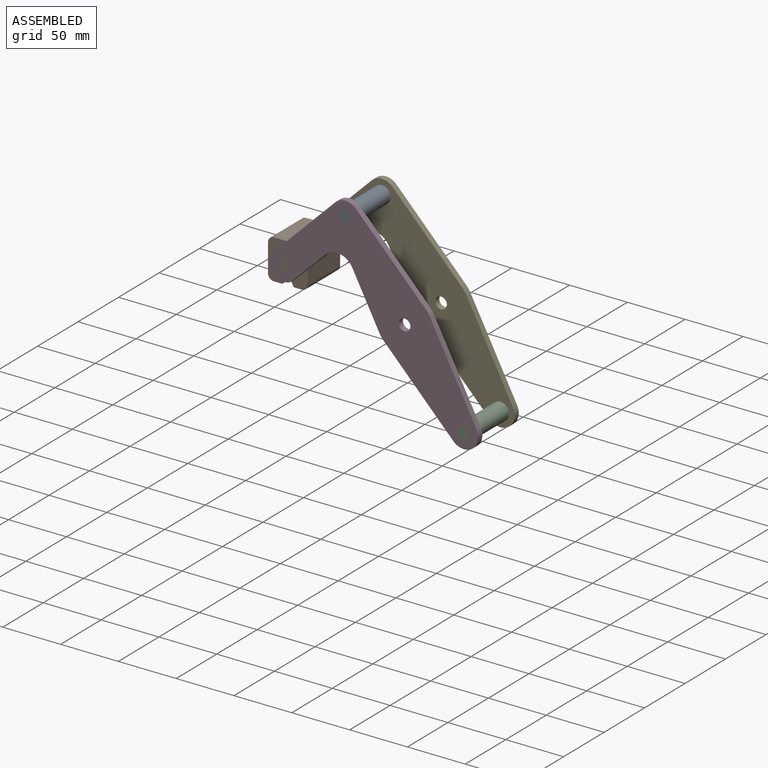
[diagram: assembled view]
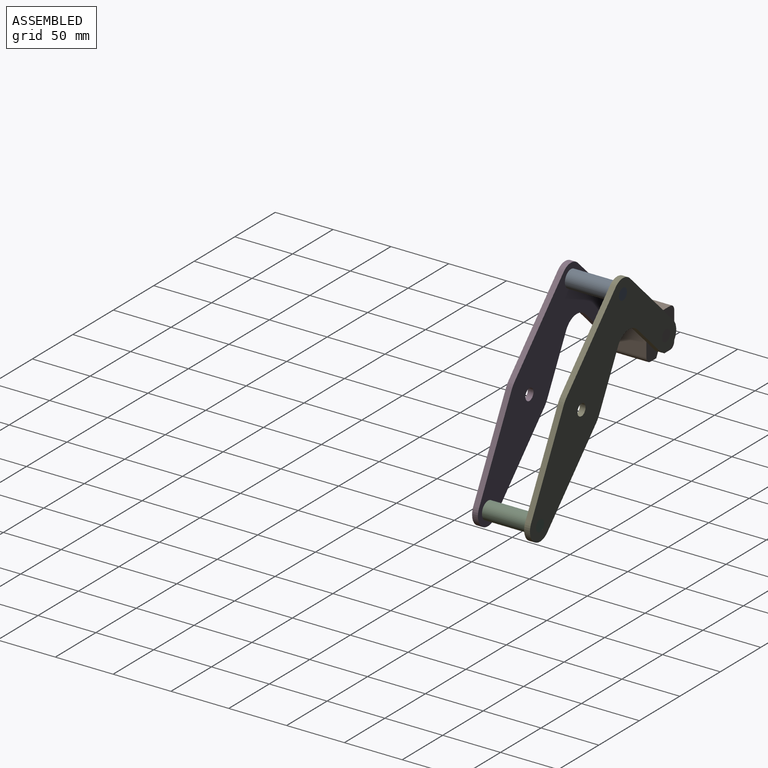
[diagram: assembled view, second angle]
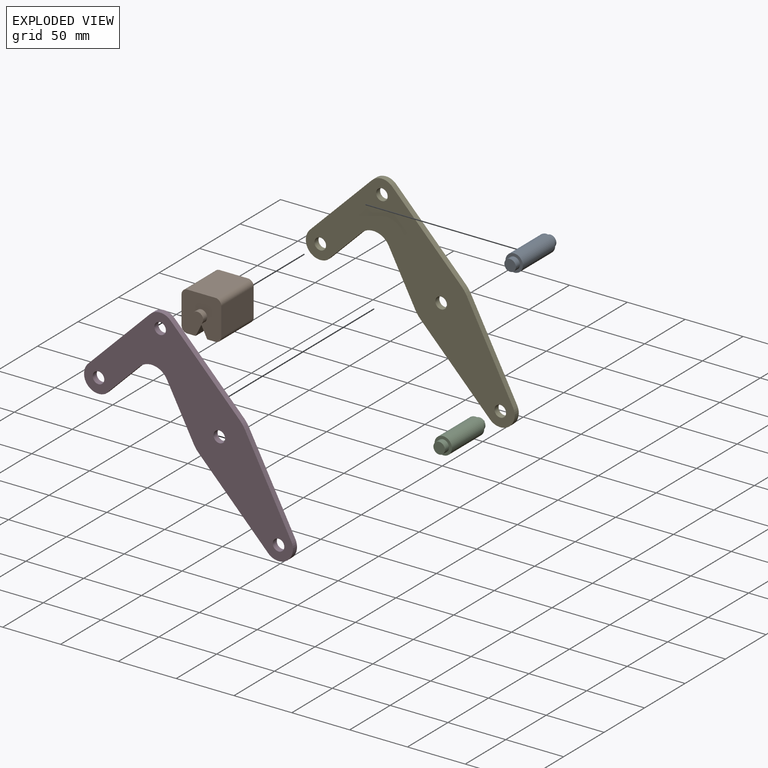
[diagram: exploded view]
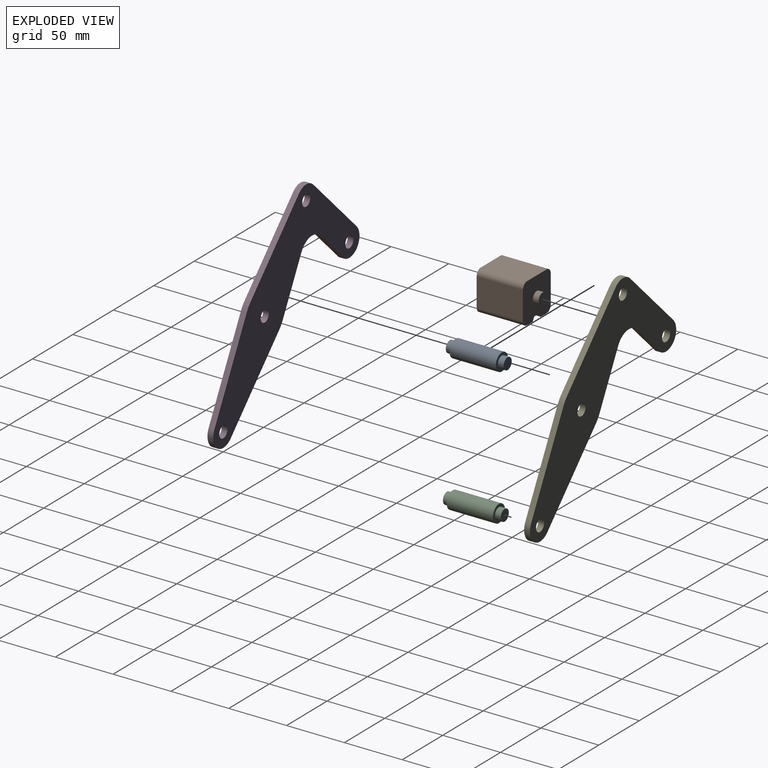
[diagram: exploded view, second angle]
ASSEMBLY  parts=5 mates=3
PART A: 7 faces, bbox 15x50x15 mm
  f0: cylinder r=7.5mm len=40mm, axis (0,1,0), area 1885mm2, adj f2,f5
  f1: cylinder r=5mm len=10mm, axis (0,-1,0), area 157.1mm2, adj f2,f3
  f2: plane 15x15mm, normal (0,1,0), area 98.2mm2, adj f0,f1
  f3: plane 10x10mm, normal (0,1,0), area 78.5mm2, adj f1
  f4: cylinder r=5mm len=10mm, axis (0,1,0), area 157.1mm2, adj f5,f6
  f5: plane 15x15mm, normal (0,-1,0), area 98.2mm2, adj f0,f4
  f6: plane 10x10mm, normal (0,-1,0), area 78.5mm2, adj f4
PART B: 17 faces, bbox 34.4x50x34.4 mm
  f0: plane 40x24.35mm, normal (0,0,1), area 974mm2, adj f5,f10,f13,f14
  f1: plane 40x24.35mm, normal (1,0,0), area 974mm2, adj f5,f12,f13,f14
  f2: plane 40x7.18mm, normal (0,0,-1), area 287mm2, adj f3,f5,f12,f14
  f3: plane 40x10mm, normal (-0.89,0,-0.45), area 447.2mm2, adj f2,f5,f6,f14
  f4: plane 40x24.35mm, normal (-1,0,0), area 974mm2, adj f5,f10,f11,f14
  f5: plane 34.35x34.35mm, normal (0,1,0), area 1029.9mm2, adj f0,f1,f2,f3,f4,f6,f7,f8
  f6: plane 40x10mm, normal (0.89,0,-0.45), area 447.2mm2, adj f3,f5,f7,f14
  f7: plane 40x7.18mm, normal (0,0,-1), area 287mm2, adj f5,f6,f11,f14
  f8: cylinder r=5mm len=10mm, axis (0,-1,0), area 157.1mm2, adj f5,f9
  f9: plane 10x10mm, normal (0,1,0), area 78.5mm2, adj f8
  f10: cylinder r=5mm len=40mm, axis (0,1,0), area 314.2mm2, adj f0,f4,f5,f14
  f11: cylinder r=5mm len=40mm, axis (0,-1,0), area 314.2mm2, adj f4,f5,f7,f14
  f12: cylinder r=5mm len=40mm, axis (0,1,0), area 314.2mm2, adj f1,f2,f5,f14
  f13: cylinder r=5mm len=40mm, axis (0,-1,0), area 314.2mm2, adj f0,f1,f5,f14
  f14: plane 34.35x34.35mm, normal (0,-1,0), area 1029.9mm2, adj f0,f1,f2,f3,f4,f6,f7,f10
  f15: cylinder r=5mm len=10mm, axis (0,1,0), area 157.1mm2, adj f14,f16
  f16: plane 10x10mm, normal (0,-1,0), area 78.5mm2, adj f15
PART C: same geometry as A
PART D: 18 faces, bbox 180.7x5x166.9 mm
  f0: plane 43.7x22.86mm, normal (-0.89,0,-0.46), area 246.6mm2, adj f1,f14,f16,f17
  f1: cylinder r=25mm len=6.29mm, axis (0,1,0), area 38.6mm2, adj f0,f2,f16,f17
  f2: plane 62.26x60.2mm, normal (-0.72,0,-0.7), area 433mm2, adj f1,f3,f16,f17
  f3: cylinder r=12.5mm len=21.49mm, axis (0,1,0), area 178.4mm2, adj f2,f4,f16,f17
  f4: plane 76.74x40.13mm, normal (0.89,0,0.46), area 433mm2, adj f3,f5,f16,f17
  f5: cylinder r=25mm len=5.79mm, axis (0,1,0), area 35.8mm2, adj f4,f6,f16,f17
  f6: plane 62.26x60.2mm, normal (0.72,0,0.7), area 433mm2, adj f5,f7,f16,f17
  f7: cylinder r=12.5mm len=17.78mm, axis (0,1,0), area 98.9mm2, adj f6,f8,f16,f17
  f8: plane 53.29x52.78mm, normal (-0.7,0,0.71), area 375mm2, adj f7,f9,f16,f17
  f9: cylinder r=12.5mm len=21.38mm, axis (0,1,0), area 178.6mm2, adj f8,f10,f16,f17
  f10: plane 29.42x29.14mm, normal (0.7,0,-0.71), area 207mm2, adj f9,f14,f16,f17
  f11: cylinder r=5mm len=10mm, axis (0,1,0), area 157.1mm2, adj f16,f17
  f12: cylinder r=5mm len=10mm, axis (0,1,0), area 157.1mm2, adj f16,f17
  f13: cylinder r=5mm len=10mm, axis (0,1,0), area 157.1mm2, adj f16,f17
  f14: cylinder r=15mm len=23.85mm, axis (0,1,0), area 140.2mm2, adj f0,f10,f16,f17
  f15: cylinder r=5mm len=10mm, axis (0,1,0), area 157.1mm2, adj f16,f17
  f16: plane 180.71x166.9mm, normal (0,-1,0), area 8679.7mm2, adj f0,f1,f2,f3,f4,f5,f6,f7
  f17: plane 180.71x166.9mm, normal (0,1,0), area 8679.7mm2, adj f0,f1,f2,f3,f4,f5,f6,f7
PART E: same geometry as D
PLACE A t=(0,-20,0)mm
PLACE B t=(0,-20,0)mm
PLACE C t=(102.42,-20,-141.9)mm
PLACE D t=(0,-20,0)mm fixed
PLACE E t=(0,25,0)mm
MATE fastened C.f0 <-> E.f3  axis (0,1,0) through (51.21,20,-70.95)mm
MATE fastened A.f0 <-> E.f7  axis (0,1,0) through (-51.21,20,70.95)mm
MATE revolute B.f8 <-> D.f9  axis (0,-1,0) through (-104.5,-20,18.17)mm
